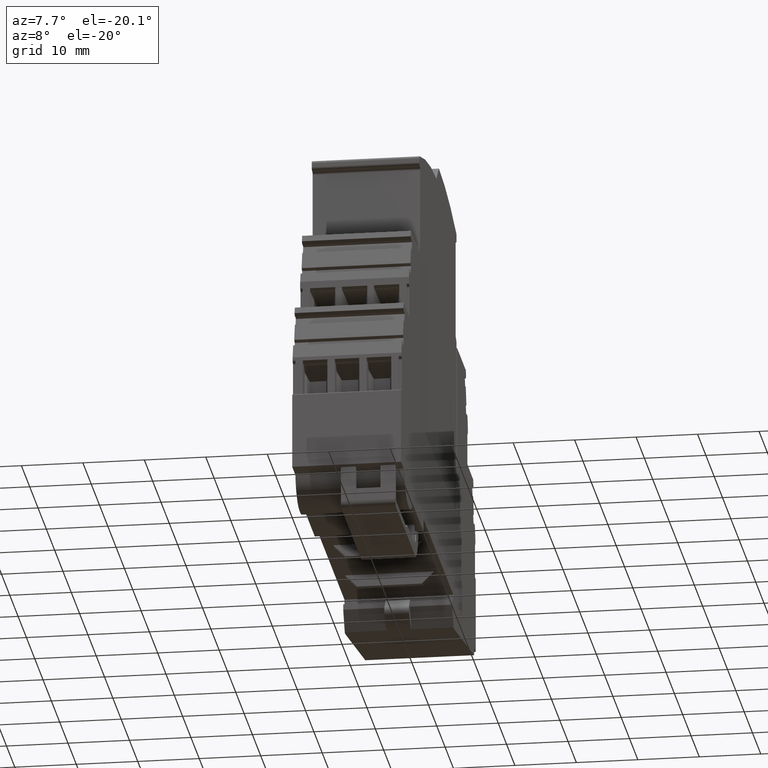
[diagram: clean part render]
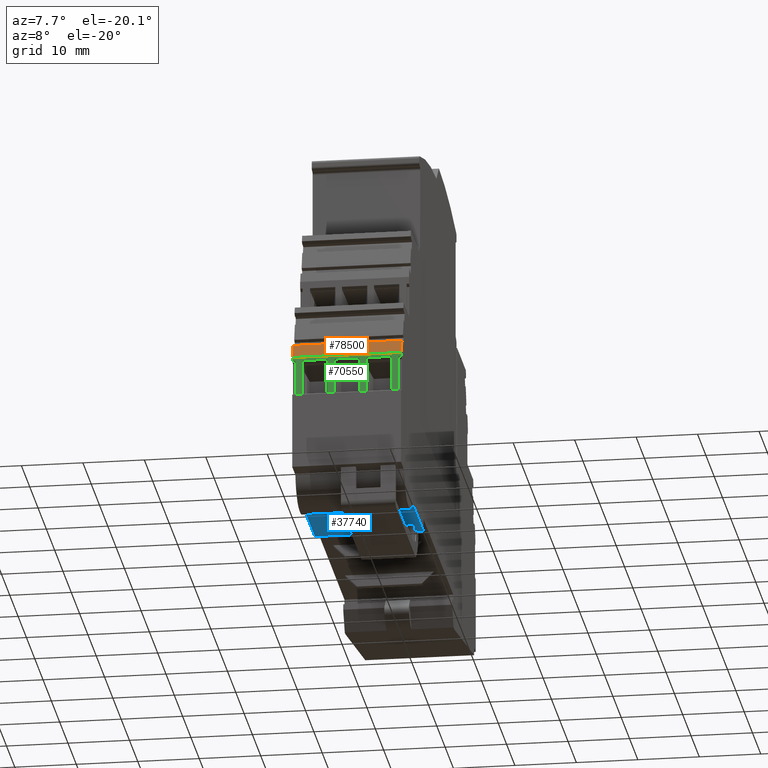
[diagram: same view with three faces highlighted in distinct colors, each labeled with its STEP entity id]
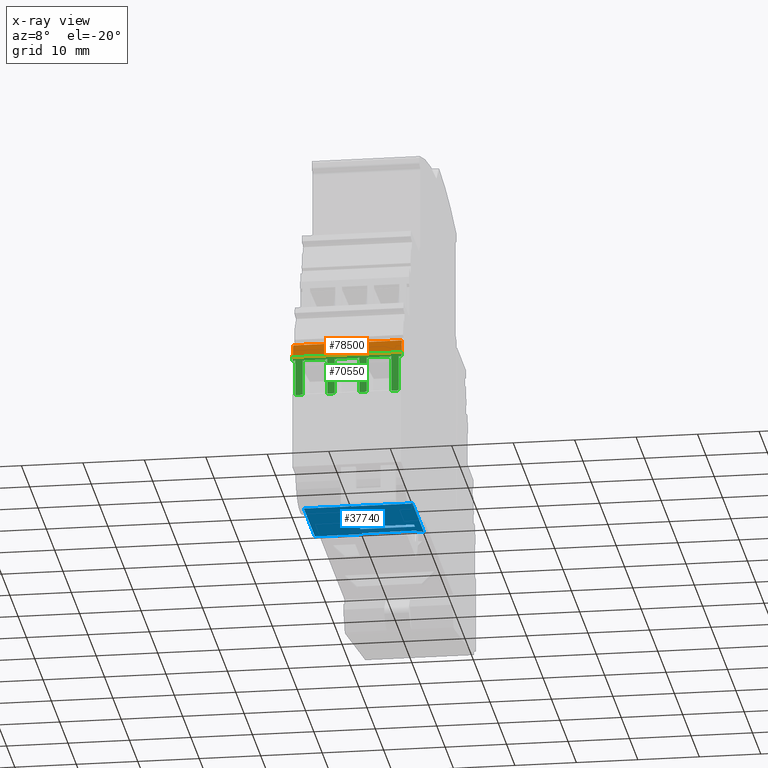
[diagram: x-ray of the same camera — body ghosted, the three highlighted faces saturated]
A machine part, auxiliary view with three faces highlighted in distinct colors.
The next image is the same camera in x-ray (body ghosted, the three faces saturated) — at least one of them is partly hidden behind the body in this view.
Their STEP definitions:

[orange] entity #78500 — the highlighted planar face has unit normal (-0, 0.9646, -0.2639).
#24730=CARTESIAN_POINT('',(51.6060415176238,174.781458934573,
82.0896038227667));
#24740=VERTEX_POINT('',#24730);
#24770=CARTESIAN_POINT('',(36.1733731573422,119.132715566885,
82.1434742166161));
#24780=DIRECTION('',(-0.267236747970687,-0.963630453208604,
0.000932836015660361));
#24790=VECTOR('',#24780,1.);
#24800=LINE('',#24770,#24790);
#24810=CARTESIAN_POINT('',(52.2426442173797,177.076988096404,
82.0873816511137));
#24820=VERTEX_POINT('',#24810);
#24830=EDGE_CURVE('',#24820,#24740,#24800,.T.);
#48160=CARTESIAN_POINT('',(52.1808596873303,177.076988096404,
64.3874894855708));
#48170=VERTEX_POINT('',#48160);
#48200=CARTESIAN_POINT('',(47.2545566262322,159.313204906191,
64.4046855970874));
#48210=DIRECTION('',(0.267236747970687,0.963630453208604,
-0.000932836015660361));
#48220=VECTOR('',#48210,1.);
#48230=LINE('',#48200,#48220);
#48240=CARTESIAN_POINT('',(51.5442569875743,174.781458934573,
64.3897116572238));
#48250=VERTEX_POINT('',#48240);
#48260=EDGE_CURVE('',#48250,#48170,#48230,.T.);
#59980=CARTESIAN_POINT('',(52.3597555723608,177.076988096404,
115.637177253125));
#59990=DIRECTION('',(-0.00349065141522385,-4.72809693627286E-16,
-0.999993907657791));
#60000=VECTOR('',#59990,1.);
#60010=LINE('',#59980,#60000);
#60020=EDGE_CURVE('',#24820,#48170,#60010,.T.);
#70380=CARTESIAN_POINT('',(51.7231528726048,174.781458934573,
115.639399424778));
#70390=DIRECTION('',(-0.00349065141522385,-4.72809693627286E-16,
-0.999993907657791));
#70400=VECTOR('',#70390,1.);
#70410=LINE('',#70380,#70400);
#70420=EDGE_CURVE('',#24740,#48250,#70410,.T.);
#78390=CARTESIAN_POINT('',(52.1191440039791,176.854447175781,
64.3877049148207));
#78400=DIRECTION('',(0.96362458244212,-0.267238376078326,
-0.00336369800524529));
#78410=DIRECTION('',(0.267236747970687,0.963630453208604,
-0.000932836015660361));
#78420=AXIS2_PLACEMENT_3D('',#78390,#78400,#78410);
#78430=PLANE('',#78420);
#78440=ORIENTED_EDGE('',*,*,#48260,.F.);
#78450=ORIENTED_EDGE('',*,*,#60020,.T.);
#78460=ORIENTED_EDGE('',*,*,#24830,.F.);
#78470=ORIENTED_EDGE('',*,*,#70420,.F.);
#78480=EDGE_LOOP('',(#78470,#78460,#78450,#78440));
#78490=FACE_OUTER_BOUND('',#78480,.T.);
#78500=ADVANCED_FACE('',(#78490),#78430,.F.);

[blue] entity #37740 — the highlighted planar face has unit normal (-0, 0, -1).
#10240=CARTESIAN_POINT('',(78.2284126665014,153.642386083319,
80.8966671374607));
#10250=VERTEX_POINT('',#10240);
#10280=CARTESIAN_POINT('',(78.2322523830582,153.642386083319,
81.9966604358843));
#10290=DIRECTION('',(-0.00349065141522373,-4.7248443297554E-16,
-0.999993907657791));
#10300=VECTOR('',#10290,1.);
#10310=LINE('',#10280,#10300);
#10320=CARTESIAN_POINT('',(78.2322523830582,153.642386083319,
81.9966604358843));
#10330=VERTEX_POINT('',#10320);
#10340=EDGE_CURVE('',#10330,#10250,#10310,.T.);
#23870=CARTESIAN_POINT('',(96.6344040573708,153.578149803837,
81.9324245477522));
#23880=DIRECTION('',(0.999987815352698,-0.00349065141522422,
-0.00349063014898079));
#23890=VECTOR('',#23880,1.);
#23900=LINE('',#23870,#23890);
#23910=CARTESIAN_POINT('',(65.0382364215705,153.688442354986,
82.0427164269616));
#23920=VERTEX_POINT('',#23910);
#23930=EDGE_CURVE('',#23920,#10330,#23900,.T.);
#31650=CARTESIAN_POINT('',(74.7975618292784,153.65425429813,
72.0585891971959));
#31660=VERTEX_POINT('',#31650);
#31690=CARTESIAN_POINT('',(74.8322938108598,153.65425429813,
82.0085285783909));
#31700=DIRECTION('',(-0.00349065141522373,-4.7248443297554E-16,
-0.999993907657791));
#31710=VECTOR('',#31700,1.);
#31720=LINE('',#31690,#31710);
#31730=CARTESIAN_POINT('',(74.8284540943031,153.65425429813,
80.9085352799672));
#31740=VERTEX_POINT('',#31730);
#31750=EDGE_CURVE('',#31740,#31660,#31720,.T.);
#33630=CARTESIAN_POINT('',(96.630564340814,153.578149803837,
80.8324312493286));
#33640=DIRECTION('',(-0.999987815352698,0.00349065141522422,
0.00349063014898067));
#33650=VECTOR('',#33640,1.);
#33660=LINE('',#33630,#33650);
#33670=CARTESIAN_POINT('',(75.8284419096558,153.650763646715,
80.9050446498183));
#33680=VERTEX_POINT('',#33670);
#33690=EDGE_CURVE('',#33680,#31740,#33660,.T.);
#33990=CARTESIAN_POINT('',(77.7284187588259,153.644131409026,
80.8984124525352));
#34000=VERTEX_POINT('',#33990);
#34030=EDGE_CURVE('',#10250,#34000,#33660,.T.);
#35140=CARTESIAN_POINT('',(78.1975204014767,153.642386083319,
72.0467210546893));
#35150=VERTEX_POINT('',#35140);
#35180=CARTESIAN_POINT('',(165.337809928762,153.33820600203,
71.74254282657));
#35190=DIRECTION('',(-0.999987815352698,0.00349065141522422,
0.00349063014898079));
#35200=VECTOR('',#35190,1.);
#35210=LINE('',#35180,#35200);
#35220=CARTESIAN_POINT('',(77.6975264938012,153.644131409026,
72.0484663697638));
#35230=VERTEX_POINT('',#35220);
#35240=EDGE_CURVE('',#35150,#35230,#35210,.T.);
#35540=CARTESIAN_POINT('',(75.7975496446311,153.650763646715,
72.0550985670469));
#35550=VERTEX_POINT('',#35540);
#35580=EDGE_CURVE('',#35550,#31660,#35210,.T.);
#36520=CARTESIAN_POINT('',(77.7322584753827,153.644131409026,
81.9984057509588));
#36530=DIRECTION('',(-0.00349065141522373,-4.7248443297554E-16,
-0.999993907657791));
#36540=VECTOR('',#36530,1.);
#36550=LINE('',#36520,#36540);
#36560=EDGE_CURVE('',#34000,#35230,#36550,.T.);
#37220=CARTESIAN_POINT('',(75.8322816262125,153.650763646715,
82.0050379482419));
#37230=DIRECTION('',(-0.00349065141522373,-4.7248443297554E-16,
-0.999993907657791));
#37240=VECTOR('',#37230,1.);
#37250=LINE('',#37220,#37240);
#37260=EDGE_CURVE('',#33680,#35550,#37250,.T.);
#37340=CARTESIAN_POINT('',(78.1704678530087,153.642386083319,
64.2967682703414));
#37350=DIRECTION('',(-0.00349063014898126,-0.99999390765779,
1.21846473030776E-5));
#37360=DIRECTION('',(0.999987815352698,-0.00349065141522422,
-0.00349063014898079));
#37370=AXIS2_PLACEMENT_3D('',#37340,#37350,#37360);
#37380=PLANE('',#37370);
#37390=ORIENTED_EDGE('',*,*,#31750,.F.);
#37400=ORIENTED_EDGE('',*,*,#35580,.T.);
#37410=ORIENTED_EDGE('',*,*,#37260,.T.);
#37420=ORIENTED_EDGE('',*,*,#33690,.F.);
#37430=EDGE_LOOP('',(#37420,#37410,#37400,#37390));
#37440=FACE_BOUND('',#37430,.T.);
#37450=ORIENTED_EDGE('',*,*,#10340,.F.);
#37460=ORIENTED_EDGE('',*,*,#34030,.F.);
#37470=ORIENTED_EDGE('',*,*,#36560,.F.);
#37480=ORIENTED_EDGE('',*,*,#35240,.T.);
#37490=CARTESIAN_POINT('',(78.0533564980276,153.642386083319,
30.7469726683302));
#37500=DIRECTION('',(0.00349065141522373,4.7248443297554E-16,
0.999993907657791));
#37510=VECTOR('',#37500,1.);
#37520=LINE('',#37490,#37510);
#37530=CARTESIAN_POINT('',(78.1704678530087,153.642386083319,
64.2967682703414));
#37540=VERTEX_POINT('',#37530);
#37550=EDGE_CURVE('',#37540,#35150,#37520,.T.);
#37560=ORIENTED_EDGE('',*,*,#37550,.T.);
#37570=CARTESIAN_POINT('',(35.5296361089204,153.79123217663,
64.4456134568311));
#37580=DIRECTION('',(-0.999987815352698,0.00349065141522422,
0.00349063014898079));
#37590=VECTOR('',#37580,1.);
#37600=LINE('',#37570,#37590);
#37610=CARTESIAN_POINT('',(64.9764518915211,153.688442354986,
64.3428242614188));
#37620=VERTEX_POINT('',#37610);
#37630=EDGE_CURVE('',#37540,#37620,#37600,.T.);
#37640=ORIENTED_EDGE('',*,*,#37630,.F.);
#37650=CARTESIAN_POINT('',(64.9764518915211,153.688442354986,
64.3428242614188));
#37660=DIRECTION('',(0.00349065141522373,4.7248443297554E-16,
0.999993907657791));
#37670=VECTOR('',#37660,1.);
#37680=LINE('',#37650,#37670);
#37690=EDGE_CURVE('',#37620,#23920,#37680,.T.);
#37700=ORIENTED_EDGE('',*,*,#37690,.F.);
#37710=ORIENTED_EDGE('',*,*,#23930,.F.);
#37720=EDGE_LOOP('',(#37710,#37700,#37640,#37560,#37480,#37470,#37460,
#37450));
#37730=FACE_OUTER_BOUND('',#37720,.T.);
#37740=ADVANCED_FACE('',(#37440,#37730),#37380,.T.);

[green] entity #70550 — the highlighted planar face has unit normal (-0, 1, 0).
#8130=CARTESIAN_POINT('',(51.5636627343741,168.290807174035,
76.4397173312856));
#8140=VERTEX_POINT('',#8130);
#8170=CARTESIAN_POINT('',(51.605359567215,180.236103280423,
76.4395717812902));
#8180=DIRECTION('',(0.00349063014898133,0.999993907657791,
-1.21846473030788E-5));
#8190=VECTOR('',#8180,1.);
#8200=LINE('',#8170,#8190);
#8210=CARTESIAN_POINT('',(51.5842389191926,174.185461887708,
76.4396455065593));
#8220=VERTEX_POINT('',#8210);
#8230=EDGE_CURVE('',#8140,#8220,#8200,.T.);
#9150=CARTESIAN_POINT('',(51.5982015248535,174.185461887708,
80.4396211371905));
#9160=VERTEX_POINT('',#9150);
#9190=CARTESIAN_POINT('',(51.6193223430085,180.236152019903,
80.4395474113275));
#9200=DIRECTION('',(-0.00349063014898133,-0.999993907657791,
1.21846473030788E-5));
#9210=VECTOR('',#9200,1.);
#9220=LINE('',#9190,#9210);
#9230=CARTESIAN_POINT('',(51.577625340035,168.290807174035,
80.4396929619167));
#9240=VERTEX_POINT('',#9230);
#9250=EDGE_CURVE('',#9160,#9240,#9220,.T.);
#12110=CARTESIAN_POINT('',(51.5800501376058,174.185461919626,
75.2396528173696));
#12120=VERTEX_POINT('',#12110);
#12150=CARTESIAN_POINT('',(51.6011709556492,180.236152019903,
75.239579091507));
#12160=DIRECTION('',(-0.00349063014898133,-0.999993907657791,
1.21846473030788E-5));
#12170=VECTOR('',#12160,1.);
#12180=LINE('',#12150,#12170);
#12190=CARTESIAN_POINT('',(51.5594739526754,168.290807173924,
75.2397246420962));
#12200=VERTEX_POINT('',#12190);
#12210=EDGE_CURVE('',#12120,#12200,#12180,.T.);
#24650=CARTESIAN_POINT('',(51.6039610996886,174.185461887708,
82.0896110848248));
#24660=VERTEX_POINT('',#24650);
#24690=CARTESIAN_POINT('',(51.4116054780831,119.079523561544,
82.0902825353383));
#24700=DIRECTION('',(-0.00349063014898133,-0.999993907657791,
1.21846473030787E-5));
#24710=VECTOR('',#24700,1.);
#24720=LINE('',#24690,#24710);
#24730=CARTESIAN_POINT('',(51.6060415176238,174.781458934573,
82.0896038227667));
#24740=VERTEX_POINT('',#24730);
#24750=EDGE_CURVE('',#24740,#24660,#24720,.T.);
#27950=CARTESIAN_POINT('',(51.5660875319449,174.185461919626,
71.2396771867384));
#27960=VERTEX_POINT('',#27950);
#27990=CARTESIAN_POINT('',(51.5952781634897,174.185461887708,
79.6021431980011));
#28000=DIRECTION('',(-0.00349065141522389,-1.14430163025221E-14,
-0.99999390765779));
#28010=VECTOR('',#28000,1.);
#28020=LINE('',#27990,#28010);
#28030=EDGE_CURVE('',#12120,#27960,#28020,.T.);
#48240=CARTESIAN_POINT('',(51.5442569875743,174.781458934573,
64.3897116572238));
#48250=VERTEX_POINT('',#48240);
#48280=CARTESIAN_POINT('',(51.4902110941744,159.298419532773,
64.3899003137475));
#48290=DIRECTION('',(-0.00349063014898133,-0.999993907657791,
1.21846473030787E-5));
#48300=VECTOR('',#48290,1.);
#48310=LINE('',#48280,#48300);
#48320=CARTESIAN_POINT('',(51.5421765696392,174.185461887708,
64.3897189192819));
#48330=VERTEX_POINT('',#48320);
#48340=EDGE_CURVE('',#48250,#48330,#48310,.T.);
#63790=CARTESIAN_POINT('',(51.5231711779992,168.290807174035,
64.8397880144226));
#63800=VERTEX_POINT('',#63790);
#63830=CARTESIAN_POINT('',(51.5394833549281,168.290807174035,
69.5128726417318));
#63840=DIRECTION('',(-0.00349065141523483,-4.14383054991579E-16,
-0.999993907657791));
#63850=VECTOR('',#63840,1.);
#63860=LINE('',#63830,#63850);
#63870=CARTESIAN_POINT('',(51.5273599596557,168.290807174035,
66.0397806916445));
#63880=VERTEX_POINT('',#63870);
#63890=EDGE_CURVE('',#63880,#63800,#63860,.T.);
#64110=CARTESIAN_POINT('',(51.5413225653167,168.290807174035,
70.0397563222757));
#64120=VERTEX_POINT('',#64110);
#64150=CARTESIAN_POINT('',(51.5455113470145,168.290807173924,
71.239749011465));
#64160=VERTEX_POINT('',#64150);
#64170=EDGE_CURVE('',#64160,#64120,#63860,.T.);
#64270=CARTESIAN_POINT('',(51.5576347422873,168.290807174035,
74.7128409615523));
#64280=DIRECTION('',(-0.00349065141523483,-4.14383054991579E-16,
-0.999993907657791));
#64290=VECTOR('',#64280,1.);
#64300=LINE('',#64270,#64290);
#64310=EDGE_CURVE('',#8140,#12200,#64300,.T.);
#64410=CARTESIAN_POINT('',(51.5747017279546,168.290807174035,
79.6021431980011));
#64420=DIRECTION('',(-0.00349065141522385,-4.14079817196462E-16,
-0.99999390765779));
#64430=VECTOR('',#64420,1.);
#64440=LINE('',#64410,#64430);
#64450=CARTESIAN_POINT('',(51.5818141216915,168.290807174035,
81.6396856391359));
#64460=VERTEX_POINT('',#64450);
#64470=EDGE_CURVE('',#64460,#9240,#64440,.T.);
#64810=CARTESIAN_POINT('',(51.621342320582,179.614825011546,
81.6395476591319));
#64820=DIRECTION('',(-0.00349063014898133,-0.999993907657791,
1.21846473030788E-5));
#64830=VECTOR('',#64820,1.);
#64840=LINE('',#64810,#64830);
#64850=CARTESIAN_POINT('',(51.60239030651,174.185461887708,
81.6396138144096));
#64860=VERTEX_POINT('',#64850);
#64870=EDGE_CURVE('',#64860,#64460,#64840,.T.);
#69770=CARTESIAN_POINT('',(51.5428504368442,174.378511013761,
64.389716567032));
#69780=DIRECTION('',(0.999987815352698,-0.00349065141522428,
-0.0034906301489809));
#69790=DIRECTION('',(-0.00349065141522385,-4.72059222436019E-16,
-0.999993907657791));
#69800=AXIS2_PLACEMENT_3D('',#69770,#69780,#69790);
#69810=PLANE('',#69800);
#69820=ORIENTED_EDGE('',*,*,#9250,.T.);
#69830=CARTESIAN_POINT('',(51.5952781634897,174.185461887708,
79.6021431980011));
#69840=DIRECTION('',(-0.00349065141522389,-1.14430163025221E-14,
-0.99999390765779));
#69850=VECTOR('',#69840,1.);
#69860=LINE('',#69830,#69850);
#69870=EDGE_CURVE('',#9160,#8220,#69860,.T.);
#69880=ORIENTED_EDGE('',*,*,#69870,.F.);
#69890=ORIENTED_EDGE('',*,*,#8230,.T.);
#69900=ORIENTED_EDGE('',*,*,#64310,.F.);
#69910=ORIENTED_EDGE('',*,*,#12210,.T.);
#69920=ORIENTED_EDGE('',*,*,#28030,.F.);
#69930=CARTESIAN_POINT('',(51.5872081798558,180.236103280423,
71.2396034614697));
#69940=DIRECTION('',(0.00349063014898133,0.999993907657791,
-1.21846473030788E-5));
#69950=VECTOR('',#69940,1.);
#69960=LINE('',#69930,#69950);
#69970=EDGE_CURVE('',#64160,#27960,#69960,.T.);
#69980=ORIENTED_EDGE('',*,*,#69970,.T.);
#69990=ORIENTED_EDGE('',*,*,#64170,.F.);
#70000=CARTESIAN_POINT('',(51.58301956829,180.236152019903,
70.0396107716865));
#70010=DIRECTION('',(-0.00349063014898133,-0.999993907657791,
1.21846473030788E-5));
#70020=VECTOR('',#70010,1.);
#70030=LINE('',#70000,#70020);
#70040=CARTESIAN_POINT('',(51.5618987502466,174.185461919626,
70.039684497549));
#70050=VERTEX_POINT('',#70040);
#70060=EDGE_CURVE('',#70050,#64120,#70030,.T.);
#70070=ORIENTED_EDGE('',*,*,#70060,.T.);
#70080=CARTESIAN_POINT('',(51.5952781634897,174.185461887708,
79.6021431980011));
#70090=DIRECTION('',(-0.00349065141522389,-1.14430163025221E-14,
-0.99999390765779));
#70100=VECTOR('',#70090,1.);
#70110=LINE('',#70080,#70100);
#70120=CARTESIAN_POINT('',(51.5479361444743,174.185461887708,
66.0397088669183));
#70130=VERTEX_POINT('',#70120);
#70140=EDGE_CURVE('',#70050,#70130,#70110,.T.);
#70150=ORIENTED_EDGE('',*,*,#70140,.F.);
#70160=CARTESIAN_POINT('',(51.5690567924966,180.236103280423,
66.0396351416492));
#70170=DIRECTION('',(0.00349063014898133,0.999993907657791,
-1.21846473030788E-5));
#70180=VECTOR('',#70170,1.);
#70190=LINE('',#70160,#70180);
#70200=EDGE_CURVE('',#63880,#70130,#70190,.T.);
#70210=ORIENTED_EDGE('',*,*,#70200,.T.);
#70220=ORIENTED_EDGE('',*,*,#63890,.F.);
#70230=CARTESIAN_POINT('',(51.5626986623332,179.61462030573,
64.8396500369129));
#70240=DIRECTION('',(0.00349063014898133,0.999993907657791,
-1.21846473030788E-5));
#70250=VECTOR('',#70240,1.);
#70260=LINE('',#70230,#70250);
#70270=CARTESIAN_POINT('',(51.5437473628178,174.185461887708,
64.8397161896964));
#70280=VERTEX_POINT('',#70270);
#70290=EDGE_CURVE('',#63800,#70280,#70260,.T.);
#70300=ORIENTED_EDGE('',*,*,#70290,.F.);
#70310=CARTESIAN_POINT('',(51.7210724546697,174.185461887708,
115.639406686836));
#70320=DIRECTION('',(-0.00349065141522385,-4.72809693627286E-16,
-0.999993907657791));
#70330=VECTOR('',#70320,1.);
#70340=LINE('',#70310,#70330);
#70350=EDGE_CURVE('',#70280,#48330,#70340,.T.);
#70360=ORIENTED_EDGE('',*,*,#70350,.F.);
#70370=ORIENTED_EDGE('',*,*,#48340,.T.);
#70380=CARTESIAN_POINT('',(51.7231528726048,174.781458934573,
115.639399424778));
#70390=DIRECTION('',(-0.00349065141522385,-4.72809693627286E-16,
-0.999993907657791));
#70400=VECTOR('',#70390,1.);
#70410=LINE('',#70380,#70400);
#70420=EDGE_CURVE('',#24740,#48250,#70410,.T.);
#70430=ORIENTED_EDGE('',*,*,#70420,.T.);
#70440=ORIENTED_EDGE('',*,*,#24750,.F.);
#70450=CARTESIAN_POINT('',(51.7210724546697,174.185461887708,
115.639406686836));
#70460=DIRECTION('',(-0.00349065141522385,-4.72809693627286E-16,
-0.999993907657791));
#70470=VECTOR('',#70460,1.);
#70480=LINE('',#70450,#70470);
#70490=EDGE_CURVE('',#24660,#64860,#70480,.T.);
#70500=ORIENTED_EDGE('',*,*,#70490,.F.);
#70510=ORIENTED_EDGE('',*,*,#64870,.F.);
#70520=ORIENTED_EDGE('',*,*,#64470,.F.);
#70530=EDGE_LOOP('',(#70520,#70510,#70500,#70440,#70430,#70370,#70360,
#70300,#70220,#70210,#70150,#70070,#69990,#69980,#69920,#69910,#69900,
#69890,#69880,#69820));
#70540=FACE_OUTER_BOUND('',#70530,.T.);
#70550=ADVANCED_FACE('',(#70540),#69810,.F.);